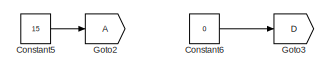
[diagram: root canvas - part 1/4, top center region]
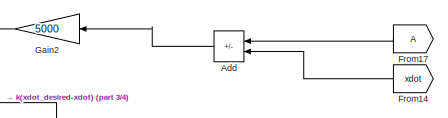
[diagram: root canvas - part 2/4, top center region]
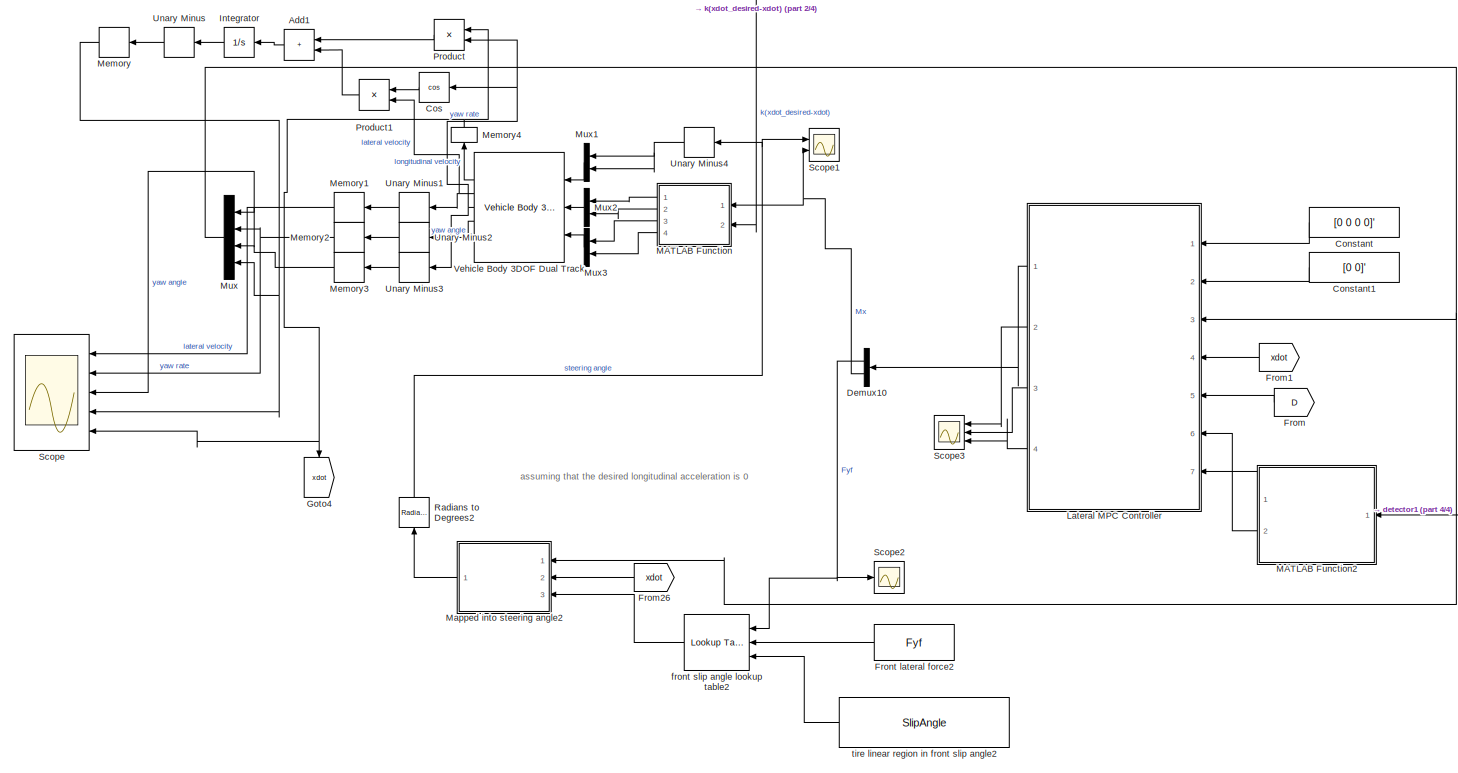
[diagram: root canvas - part 3/4, full width, middle band]
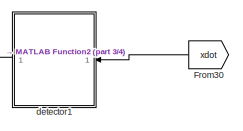
[diagram: root canvas - part 4/4, bottom right region]
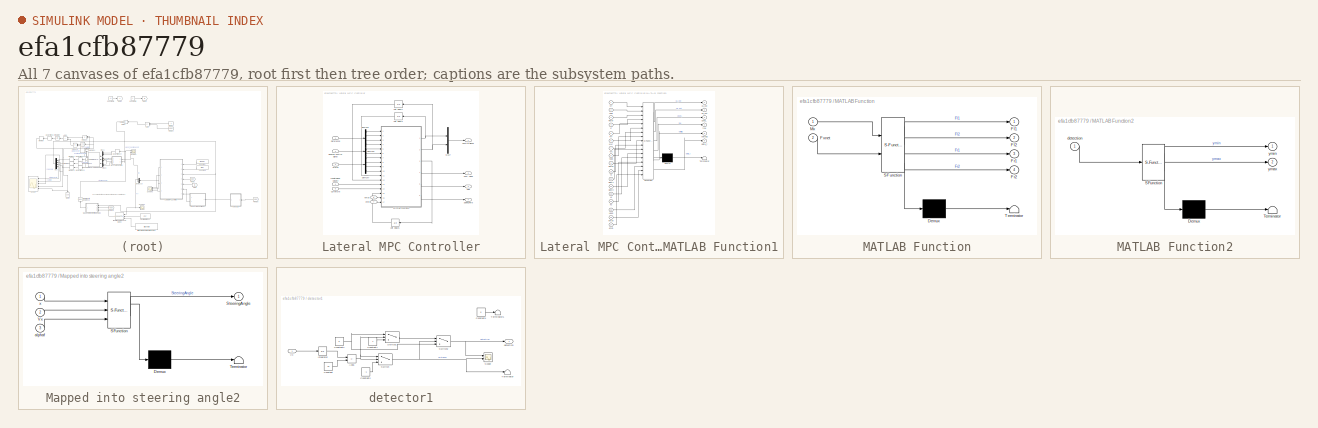
[diagram: thumbnail index - all 7 canvases of the model, root first then tree order]
MODEL slx_efa1cfb87779
KIND model
CONFIG AbsTol = auto
CONFIG EnableMultiTasking = off
CONFIG FixedStep = auto
CONFIG MaxStep = auto
CONFIG MinStep = auto
CONFIG RelTol = 1e-3
CONFIG SampleTimeConstraint = Unconstrained
CONFIG SolverName = VariableStepAuto
CONFIG StartTime = 0.0
CONFIG StopTime = 10.0
BLOCK [Sum] Add
  IconShape = rectangular
  Inputs = +-
  Ports = [2, 1]
BLOCK [Sum] Add1
  IconShape = rectangular
  Ports = [2, 1]
BLOCK [Constant] Constant
  Value = [0 0 0 0]'
BLOCK [Constant] Constant1
  Value = [0 0]'
BLOCK [Constant] Constant5
  Value = 15
BLOCK [Constant] Constant6
  Value = 0
BLOCK [Trigonometry] Cos
  Operator = cos
  Ports = [1, 1]
BLOCK [Demux] Demux10
  Outputs = 2
  Ports = [1, 2]
BLOCK [From] From
  GotoTag = D
BLOCK [From] From1
  GotoTag = xdot
BLOCK [From] From14
  GotoTag = xdot
BLOCK [From] From17
BLOCK [From] From26
  GotoTag = xdot
BLOCK [From] From30
  GotoTag = xdot
BLOCK [Constant] Front lateral force2
  Value = Fyf
BLOCK [Gain] Gain2
  Gain = 5000
BLOCK [Goto] Goto2
BLOCK [Goto] Goto3
  GotoTag = D
BLOCK [Goto] Goto4
  GotoTag = xdot
  NameLocation = left
BLOCK [Integrator] Integrator
  Ports = [1, 1]
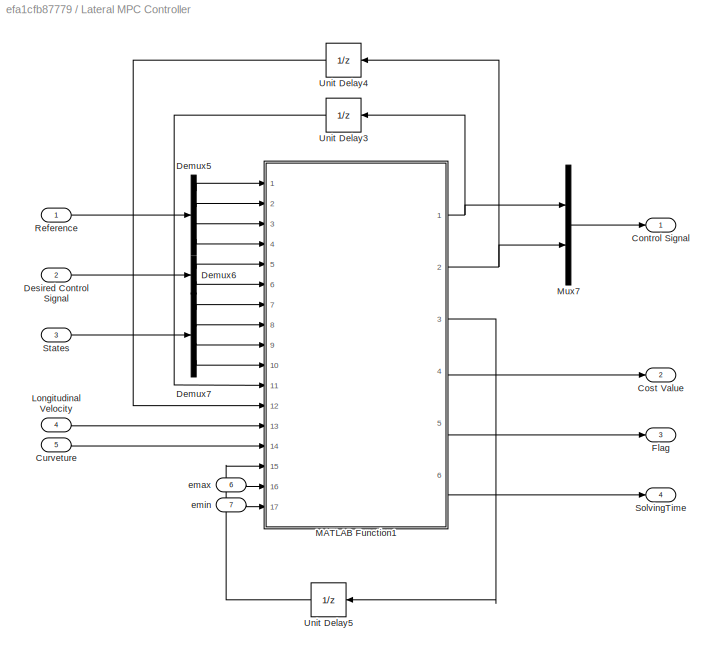
BLOCK [SubSystem] Lateral MPC Controller
  Ports = [7, 4]
  RequestExecContextInheritance = off
BLOCK [Outport] Lateral MPC Controller/Control Signal
BLOCK [Outport] Lateral MPC Controller/Cost Value
  Port = 2
BLOCK [Inport] Lateral MPC Controller/Curveture
  Port = 5
BLOCK [Demux] Lateral MPC Controller/Demux5
  Ports = [1, 4]
BLOCK [Demux] Lateral MPC Controller/Demux6
  Outputs = 2
  Ports = [1, 2]
BLOCK [Demux] Lateral MPC Controller/Demux7
  Ports = [1, 4]
BLOCK [Inport] Lateral MPC Controller/Desired Control Signal
  Port = 2
BLOCK [Outport] Lateral MPC Controller/Flag
  Port = 3
BLOCK [Inport] Lateral MPC Controller/Longitudinal Velocity
  Port = 4
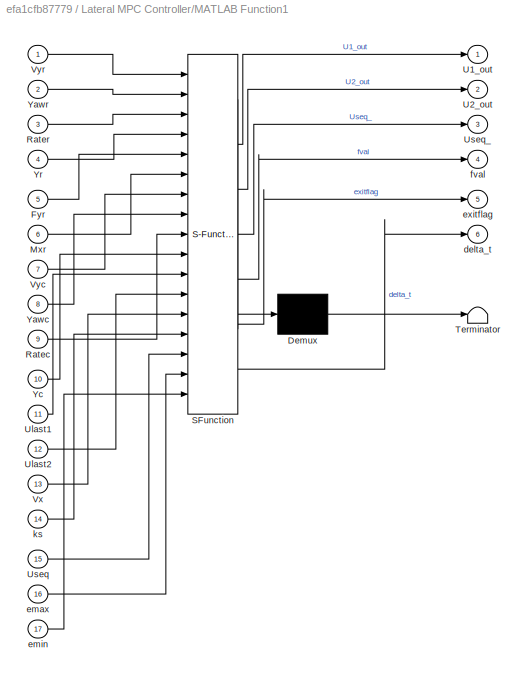
BLOCK [SubSystem] Lateral MPC Controller/MATLAB Function1
  ErrorFcn = Stateflow.Translate.translate
  PermitHierarchicalResolution = ExplicitOnly
  Ports = [17, 6]
  RequestExecContextInheritance = off
  SFBlockType = MATLAB Function
  TreatAsAtomicUnit = on
BLOCK [Demux] Lateral MPC Controller/MATLAB Function1/ Demux 
  Outputs = 1
  Ports = [1, 1]
BLOCK [S-Function] Lateral MPC Controller/MATLAB Function1/ SFunction 
  EnableBusSupport = on
  FunctionName = sf_sfun
  PortCounts = [17 7]
  Ports = [17, 7]
  SFcnIsStateOwnerBlock = off
  SFunctionDeploymentMode = off
  Tag = Stateflow S-Function 4
BLOCK [Terminator] Lateral MPC Controller/MATLAB Function1/ Terminator 
BLOCK [Inport] Lateral MPC Controller/MATLAB Function1/Fyr
  Port = 5
BLOCK [Inport] Lateral MPC Controller/MATLAB Function1/Mxr
  Port = 6
BLOCK [Inport] Lateral MPC Controller/MATLAB Function1/Ratec
  Port = 9
BLOCK [Inport] Lateral MPC Controller/MATLAB Function1/Rater
  Port = 3
BLOCK [Outport] Lateral MPC Controller/MATLAB Function1/U1_out
BLOCK [Outport] Lateral MPC Controller/MATLAB Function1/U2_out
  Port = 2
BLOCK [Inport] Lateral MPC Controller/MATLAB Function1/Ulast1
  Port = 11
BLOCK [Inport] Lateral MPC Controller/MATLAB Function1/Ulast2
  Port = 12
BLOCK [Inport] Lateral MPC Controller/MATLAB Function1/Useq
  Port = 15
BLOCK [Outport] Lateral MPC Controller/MATLAB Function1/Useq_
  Port = 3
BLOCK [Inport] Lateral MPC Controller/MATLAB Function1/Vx
  Port = 13
BLOCK [Inport] Lateral MPC Controller/MATLAB Function1/Vyc
  Port = 7
BLOCK [Inport] Lateral MPC Controller/MATLAB Function1/Vyr
BLOCK [Inport] Lateral MPC Controller/MATLAB Function1/Yawc
  Port = 8
BLOCK [Inport] Lateral MPC Controller/MATLAB Function1/Yawr
  Port = 2
BLOCK [Inport] Lateral MPC Controller/MATLAB Function1/Yc
  Port = 10
BLOCK [Inport] Lateral MPC Controller/MATLAB Function1/Yr
  Port = 4
BLOCK [Outport] Lateral MPC Controller/MATLAB Function1/delta_t
  Port = 6
BLOCK [Inport] Lateral MPC Controller/MATLAB Function1/emax
  Port = 16
BLOCK [Inport] Lateral MPC Controller/MATLAB Function1/emin
  Port = 17
BLOCK [Outport] Lateral MPC Controller/MATLAB Function1/exitflag
  Port = 5
BLOCK [Outport] Lateral MPC Controller/MATLAB Function1/fval
  Port = 4
BLOCK [Inport] Lateral MPC Controller/MATLAB Function1/ks
  Port = 14
BLOCK [Mux] Lateral MPC Controller/Mux7
  DisplayOption = bar
  Inputs = 2
  Ports = [2, 1]
BLOCK [Inport] Lateral MPC Controller/Reference
BLOCK [Outport] Lateral MPC Controller/SolvingTime
  Port = 4
BLOCK [Inport] Lateral MPC Controller/States
  Port = 3
BLOCK [UnitDelay] Lateral MPC Controller/Unit Delay3
  HasFrameUpgradeWarning = on
  SampleTime = -1
BLOCK [UnitDelay] Lateral MPC Controller/Unit Delay4
  HasFrameUpgradeWarning = on
  SampleTime = -1
BLOCK [UnitDelay] Lateral MPC Controller/Unit Delay5
  HasFrameUpgradeWarning = on
  InitialCondition = zeros(31,2)
  SampleTime = -1
BLOCK [Inport] Lateral MPC Controller/emax
  Port = 6
BLOCK [Inport] Lateral MPC Controller/emin
  Port = 7
BLOCK [SubSystem] MATLAB Function
  ErrorFcn = Stateflow.Translate.translate
  PermitHierarchicalResolution = ExplicitOnly
  Ports = [2, 4]
  RequestExecContextInheritance = off
  SFBlockType = MATLAB Function
  TreatAsAtomicUnit = on
BLOCK [Demux] MATLAB Function/ Demux 
  Outputs = 1
  Ports = [1, 1]
BLOCK [S-Function] MATLAB Function/ SFunction 
  EnableBusSupport = on
  FunctionName = sf_sfun
  PortCounts = [2 5]
  Ports = [2, 5]
  SFcnIsStateOwnerBlock = off
  SFunctionDeploymentMode = off
  Tag = Stateflow S-Function 16
BLOCK [Terminator] MATLAB Function/ Terminator 
BLOCK [Outport] MATLAB Function/Fl1
BLOCK [Outport] MATLAB Function/Fl2
  Port = 2
BLOCK [Outport] MATLAB Function/Fr1
  Port = 3
BLOCK [Outport] MATLAB Function/Fr2
  Port = 4
BLOCK [Inport] MATLAB Function/Fxnet
  Port = 2
BLOCK [Inport] MATLAB Function/Mx
BLOCK [SubSystem] MATLAB Function2
  ErrorFcn = Stateflow.Translate.translate
  PermitHierarchicalResolution = ExplicitOnly
  Ports = [1, 2]
  RequestExecContextInheritance = off
  SFBlockType = MATLAB Function
  TreatAsAtomicUnit = on
BLOCK [Demux] MATLAB Function2/ Demux 
  Outputs = 1
  Ports = [1, 1]
BLOCK [S-Function] MATLAB Function2/ SFunction 
  EnableBusSupport = on
  FunctionName = sf_sfun
  PortCounts = [1 3]
  Ports = [1, 3]
  SFcnIsStateOwnerBlock = off
  SFunctionDeploymentMode = off
  Tag = Stateflow S-Function 2
BLOCK [Terminator] MATLAB Function2/ Terminator 
BLOCK [Inport] MATLAB Function2/detection
BLOCK [Outport] MATLAB Function2/ymax
  Port = 2
BLOCK [Outport] MATLAB Function2/ymin
BLOCK [SubSystem] Mapped into steering angle2
  ErrorFcn = Stateflow.Translate.translate
  PermitHierarchicalResolution = ExplicitOnly
  Ports = [3, 1]
  RequestExecContextInheritance = off
  SFBlockType = MATLAB Function
  TreatAsAtomicUnit = on
BLOCK [Demux] Mapped into steering angle2/ Demux 
  Outputs = 1
  Ports = [1, 1]
BLOCK [S-Function] Mapped into steering angle2/ SFunction 
  EnableBusSupport = on
  FunctionName = sf_sfun
  PortCounts = [3 2]
  Ports = [3, 2]
  SFcnIsStateOwnerBlock = off
  SFunctionDeploymentMode = off
  Tag = Stateflow S-Function 13
BLOCK [Terminator] Mapped into steering angle2/ Terminator 
BLOCK [Outport] Mapped into steering angle2/SteeringAngle
BLOCK [Inport] Mapped into steering angle2/Vx
  Port = 2
BLOCK [Inport] Mapped into steering angle2/alphaf
  Port = 3
BLOCK [Inport] Mapped into steering angle2/x
BLOCK [Memory] Memory
BLOCK [Memory] Memory1
BLOCK [Memory] Memory2
BLOCK [Memory] Memory3
BLOCK [Memory] Memory4
  InitialCondition = 15
  NameLocation = right
BLOCK [Mux] Mux
  DisplayOption = bar
  Ports = [4, 1]
BLOCK [Mux] Mux1
  DisplayOption = bar
  Inputs = 2
  Ports = [2, 1]
BLOCK [Mux] Mux2
  DisplayOption = bar
  Inputs = 2
  Ports = [2, 1]
BLOCK [Mux] Mux3
  DisplayOption = bar
  Inputs = 2
  Ports = [2, 1]
BLOCK [Product] Product
  Ports = [2, 1]
BLOCK [Product] Product1
  Ports = [2, 1]
BLOCK [Reference] Radians to Degrees2  REF=simulink_extras/Transformations/Radians
to Degrees
  NameLocation = left
  Ports = [1, 1]
  SourceBlock = simulink_extras/Transformations/Radians\nto Degrees
  SourceProductBaseCode = SL
  SourceType = RadiansToDegrees
BLOCK [Scope] Scope
  Floating = off
  NumInputPorts = 5
  Ports = [5]
  ScopeSpecificationString = Simulink.scopes.TimeScopeBlockCfg('CurrentConfiguration', extmgr.ConfigurationSet(extmgr.Configuration('Core','General UI',true),extmgr.Configuration('Core','Source UI',true),extmgr.Configuration('Sources','WiredSimulink',true,'DataLoggingVariableName','ScopeData1'),extmgr.Configuration('Visuals','Time Domain',true,'SerializedDisplays',{struct('MinYLimReal','-3441.22572','MaxYLimReal','679.57122',...<+4828ch>
BLOCK [Scope] Scope1
  Floating = off
  NumInputPorts = 2
  Ports = [2]
  ScopeSpecificationString = Simulink.scopes.TimeScopeBlockCfg('CurrentConfiguration', extmgr.ConfigurationSet(extmgr.Configuration('Core','General UI',true),extmgr.Configuration('Core','Source UI',true),extmgr.Configuration('Sources','WiredSimulink',true,'DataLoggingVariableName','ScopeData2'),extmgr.Configuration('Visuals','Time Domain',true,'SerializedDisplays',{struct('MinYLimReal','-9.78875','MaxYLimReal','9.28435','YLab...<+2051ch>
BLOCK [Scope] Scope2
  Floating = off
  NumInputPorts = 1
  Ports = [1]
  ScopeSpecificationString = Simulink.scopes.TimeScopeBlockCfg('CurrentConfiguration', extmgr.ConfigurationSet(extmgr.Configuration('Core','General UI',true),extmgr.Configuration('Core','Source UI',true),extmgr.Configuration('Sources','WiredSimulink',true,'DataLoggingVariableName','ScopeData3'),extmgr.Configuration('Visuals','Time Domain',true,'SerializedDisplays',{struct('MinYLimReal','-11062.39515','MaxYLimReal','12073.7571...<+1425ch>
BLOCK [Scope] Scope3
  Floating = off
  NumInputPorts = 3
  Ports = [3]
  ScopeSpecificationString = Simulink.scopes.TimeScopeBlockCfg('CurrentConfiguration', extmgr.ConfigurationSet(extmgr.Configuration('Core','General UI',true),extmgr.Configuration('Core','Source UI',true),extmgr.Configuration('Sources','WiredSimulink',true,'DataLoggingVariableName','ScopeData4'),extmgr.Configuration('Visuals','Time Domain',true),extmgr.Configuration('Tools','Plot Navigation',true),extmgr.Configuration('Tools',...<+40ch>
BLOCK [UnaryMinus] Unary Minus
BLOCK [UnaryMinus] Unary Minus1
BLOCK [UnaryMinus] Unary Minus2
BLOCK [UnaryMinus] Unary Minus3
BLOCK [UnaryMinus] Unary Minus4
BLOCK [Reference] Vehicle Body 3DOF Dual Track  REF=autolibshared/Vehicle Body 3DOF Single Track
  Ports = [3, 7]
  SourceBlock = autolibshared/Vehicle Body 3DOF Single Track
  SourceProductBaseCode = PW,DR,MT,UV,VE
  SourceType = Vehicle Body 3DOF Lateral
BLOCK [SubSystem] detector1
  Ports = [1, 1]
  RequestExecContextInheritance = off
BLOCK [Sum] detector1/Add1
  IconShape = rectangular
  Inputs = -+
  Ports = [2, 1]
BLOCK [Constant] detector1/Constant
  Value = 75
BLOCK [Constant] detector1/Constant1
  Value = 0
BLOCK [Constant] detector1/Constant2
  Value = -1
BLOCK [Constant] detector1/Constant4
  Value = 0
BLOCK [Constant] detector1/Constant7
BLOCK [Integrator] detector1/Integrator
  Ports = [1, 1]
BLOCK [Scope] detector1/Scope
  Floating = off
  NumInputPorts = 2
  Ports = [2]
  ScopeSpecificationString = Simulink.scopes.TimeScopeBlockCfg('CurrentConfiguration', extmgr.ConfigurationSet(extmgr.Configuration('Core','General UI',true),extmgr.Configuration('Core','Source UI',true),extmgr.Configuration('Sources','WiredSimulink',true),extmgr.Configuration('Visuals','Time Domain',true,'SerializedDisplays',{struct('MinYLimReal','-0.125','MaxYLimReal','1.125','YLabelReal','','MinYLimMag','0.00000','MaxYLimM...<+1985ch>
BLOCK [Switch] detector1/Switch
  Criteria = u2 > Threshold
  InputSameDT = off
  SaturateOnIntegerOverflow = off
BLOCK [Switch] detector1/Switch1
  Criteria = u2 > Threshold
  InputSameDT = off
  SaturateOnIntegerOverflow = off
  Threshold = 50
BLOCK [Switch] detector1/Switch2
  Criteria = u2 > Threshold
  InputSameDT = off
  SaturateOnIntegerOverflow = off
BLOCK [Terminator] detector1/Terminator
BLOCK [Terminator] detector1/Terminator1
BLOCK [Inport] detector1/Vx
BLOCK [Outport] detector1/detection
BLOCK [Reference] front slip angle lookup table2  REF=simulink/Lookup
Tables/Lookup
Table
Dynamic
  Ports = [3, 1]
  SourceBlock = simulink/Lookup\nTables/Lookup\nTable\nDynamic
  SourceProductBaseCode = SL
  SourceType = Lookup Table Dynamic
BLOCK [Constant] tire linear region in front slip angle2
  Value = SlipAngle
ANNOTATION (root): assuming that the desired longitudinal acceleration is 0
LINE Add1:1 -> Integrator:1
LINE Add:1 -> Gain2:1
LINE Constant1:1 -> Lateral MPC Controller:2
LINE Constant5:1 -> Goto2:1
LINE Constant6:1 -> Goto3:1
LINE Constant:1 -> Lateral MPC Controller:1
LINE Cos:1 -> Product1:1
NET Demux10:1 -> Scope2:1, front slip angle lookup table2:1
NET Demux10:2 -> MATLAB Function:1, Scope1:2
LINE From14:1 -> Add:2
LINE From17:1 -> Add:1
LINE From1:1 -> Lateral MPC Controller:4
LINE From26:1 -> Mapped into steering angle2:2
LINE From30:1 -> detector1:1
LINE From:1 -> Lateral MPC Controller:5
LINE Front lateral force2:1 -> front slip angle lookup table2:2
LINE Gain2:1 -> MATLAB Function:2
LINE Integrator:1 -> Unary Minus:1
LINE Lateral MPC Controller/Curveture:1 -> Lateral MPC Controller/MATLAB Function1:14
LINE Lateral MPC Controller/Demux5:1 -> Lateral MPC Controller/MATLAB Function1:1
LINE Lateral MPC Controller/Demux5:2 -> Lateral MPC Controller/MATLAB Function1:2
LINE Lateral MPC Controller/Demux5:3 -> Lateral MPC Controller/MATLAB Function1:3
LINE Lateral MPC Controller/Demux5:4 -> Lateral MPC Controller/MATLAB Function1:4
LINE Lateral MPC Controller/Demux6:1 -> Lateral MPC Controller/MATLAB Function1:5
LINE Lateral MPC Controller/Demux6:2 -> Lateral MPC Controller/MATLAB Function1:6
LINE Lateral MPC Controller/Demux7:1 -> Lateral MPC Controller/MATLAB Function1:7
LINE Lateral MPC Controller/Demux7:2 -> Lateral MPC Controller/MATLAB Function1:8
LINE Lateral MPC Controller/Demux7:3 -> Lateral MPC Controller/MATLAB Function1:9
LINE Lateral MPC Controller/Demux7:4 -> Lateral MPC Controller/MATLAB Function1:10
LINE Lateral MPC Controller/Desired Control Signal:1 -> Lateral MPC Controller/Demux6:1
LINE Lateral MPC Controller/Longitudinal Velocity:1 -> Lateral MPC Controller/MATLAB Function1:13
NET Lateral MPC Controller/MATLAB Function1:1 -> Lateral MPC Controller/Mux7:1, Lateral MPC Controller/Unit Delay3:1
NET Lateral MPC Controller/MATLAB Function1:2 -> Lateral MPC Controller/Mux7:2, Lateral MPC Controller/Unit Delay4:1
LINE Lateral MPC Controller/MATLAB Function1:3 -> Lateral MPC Controller/Unit Delay5:1
LINE Lateral MPC Controller/MATLAB Function1:4 -> Lateral MPC Controller/Cost Value:1
LINE Lateral MPC Controller/MATLAB Function1:5 -> Lateral MPC Controller/Flag:1
LINE Lateral MPC Controller/MATLAB Function1:6 -> Lateral MPC Controller/SolvingTime:1
LINE Lateral MPC Controller/Mux7:1 -> Lateral MPC Controller/Control Signal:1
LINE Lateral MPC Controller/Reference:1 -> Lateral MPC Controller/Demux5:1
LINE Lateral MPC Controller/States:1 -> Lateral MPC Controller/Demux7:1
LINE Lateral MPC Controller/Unit Delay3:1 -> Lateral MPC Controller/MATLAB Function1:11
LINE Lateral MPC Controller/Unit Delay4:1 -> Lateral MPC Controller/MATLAB Function1:12
LINE Lateral MPC Controller/Unit Delay5:1 -> Lateral MPC Controller/MATLAB Function1:15
LINE Lateral MPC Controller/emax:1 -> Lateral MPC Controller/MATLAB Function1:16
LINE Lateral MPC Controller/emin:1 -> Lateral MPC Controller/MATLAB Function1:17
LINE Lateral MPC Controller:1 -> Demux10:1
LINE Lateral MPC Controller:2 -> Scope3:1
LINE Lateral MPC Controller:3 -> Scope3:2
LINE Lateral MPC Controller:4 -> Scope3:3
LINE MATLAB Function2:1 -> Lateral MPC Controller:7
LINE MATLAB Function2:2 -> Lateral MPC Controller:6
LINE MATLAB Function:1 -> Mux2:1
LINE MATLAB Function:2 -> Mux2:2
LINE MATLAB Function:3 -> Mux3:1
LINE MATLAB Function:4 -> Mux3:2
LINE Mapped into steering angle2:1 -> Radians to Degrees2:1
NET Memory1:1 -> Mux:1, Scope:1
NET Memory2:1 -> Mux:2, Scope:2
NET Memory3:1 -> Mux:3, Scope:3
NET Memory4:1 -> Goto4:1, Product:1, Scope:5
NET Memory:1 -> Mux:4, Scope:4
LINE Mux1:1 -> Vehicle Body 3DOF Dual Track:1
LINE Mux2:1 -> Vehicle Body 3DOF Dual Track:2
LINE Mux3:1 -> Vehicle Body 3DOF Dual Track:3
NET Mux:1 -> Lateral MPC Controller:3, Mapped into steering angle2:1
LINE Product1:1 -> Add1:2
LINE Product:1 -> Add1:1
NET Radians to Degrees2:1 -> Scope1:1, Unary Minus4:1
LINE Unary Minus1:1 -> Memory1:1
LINE Unary Minus2:1 -> Memory2:1
LINE Unary Minus3:1 -> Memory3:1
NET Unary Minus4:1 -> Mux1:1, Mux1:2
LINE Unary Minus:1 -> Memory:1
LINE Vehicle Body 3DOF Dual Track:2 -> Memory4:1
NET Vehicle Body 3DOF Dual Track:3 -> Product1:2, Unary Minus1:1
NET Vehicle Body 3DOF Dual Track:4 -> Cos:1, Product:2, Unary Minus3:1
LINE Vehicle Body 3DOF Dual Track:5 -> Unary Minus2:1
NET detector1/Add1:1 -> detector1/Switch1:2, detector1/Switch:1, detector1/Switch:2
LINE detector1/Constant1:1 -> detector1/Terminator1:1
LINE detector1/Constant2:1 -> detector1/Switch:3
NET detector1/Constant4:1 -> detector1/Switch1:1, detector1/Switch2:3
LINE detector1/Constant7:1 -> detector1/Switch1:3
LINE detector1/Constant:1 -> detector1/Add1:2
LINE detector1/Integrator:1 -> detector1/Add1:1
LINE detector1/Switch1:1 -> detector1/Switch2:1
NET detector1/Switch2:1 -> detector1/Scope:1, detector1/detection:1
NET detector1/Switch:1 -> detector1/Scope:2, detector1/Switch2:2, detector1/Terminator:1
LINE detector1/Vx:1 -> detector1/Integrator:1
LINE detector1:1 -> MATLAB Function2:1
LINE front slip angle lookup table2:1 -> Mapped into steering angle2:3
LINE tire linear region in front slip angle2:1 -> front slip angle lookup table2:3
note: NET lines group one-source signal fan-out (src -> all destinations, sorted); 1:1 wires keep LINE
CHART MATLAB Function2 states=1 transitions=1
  STATE_LABEL 'eML_blk_kernel()'
  STATE_LABEL 'SCRIPT:\nfunction [ymin,ymax] = fcn(detection)\n\n% miu = 0.7; %frction cooeficient 0.7 for dry road and 0.4 for wet\n% g = 9.81; % gravity\n% m = 2272;   %mass\n% lf = 1.11;  % distance from front axle to the mass center\n% lr = 1.67;  % distance from rear axle to the mass center\n% C_a = 1.822e5; % rear cornering stifness\n% \n% Fz = m*g*lf/(lf+lr)/2; % the load that beared by the rear tire\n% \n% rmax = g*...<+314ch>'
CHART Lateral MPC Controller/MATLAB Function1 states=1 transitions=1
  STATE_LABEL 'eML_blk_kernel()'
  STATE_LABEL "SCRIPT:\nfunction [U1_out,U2_out,Useq_,fval,exitflag,delta_t] = fcn(Vyr,Yawr,Rater,Yr, Fyr,Mxr,Vyc,Yawc,Ratec,Yc,Ulast1,Ulast2,Vx,ks,Useq,emax,emin)\n%Vyr lateral velocity, Yawr yaw angle, Rater yaw rate, Yr lateral position\n%Fyr lateral force in front tyre,Mxr moment generated by longitudinal force\n%'r'means reference ||  'c'means current\n    lr=1.67;\n    threshold=0.213;\n    miu=0.7;\n    rmax=9.81...<+3608ch>"
CHART Mapped into steering angle2 states=1 transitions=1
  STATE_LABEL 'eML_blk_kernel()'
  STATE_LABEL 'SCRIPT:\nfunction SteeringAngle = fcn(x,Vx, alphaf)\n\nlf = 1.11;  % distance from front axle to the mass center\n\nVy = x(1); %lateral velocity\nr = x(2);  %yaw rate\nSteeringAngle = Vy/Vx+lf*r/Vx-alphaf;\n\n'
CHART MATLAB Function states=1 transitions=1
  STATE_LABEL 'eML_blk_kernel()'
  STATE_LABEL 'SCRIPT:\nfunction [Fl1,Fl2,Fr1,Fr2] = fcn(Mx,Fxnet)\n\nw = 1.875; % the width of the car\n\nFwf = zeros(2,1);\nFwr = zeros(2,1);\n\nif Mx > 0\n    Fwf(1) = Fxnet/2-Mx/w;\n    Fwf(2) = Fxnet/2;\n    Fwr(1) = -Mx/w;\n    Fwr(2) = 0;\nelseif Mx < 0\n    Fwf(1) = Fxnet/2;\n    Fwf(2) = Fxnet/2+Mx/w;\n    Fwr(1) = 0;\n    Fwr(2) = Mx/w;\nelse\n    Fwf(1) = Fxnet/2+0;\n    Fwf(2) = Fxnet/2+0;\n    Fwr(1) = 0;\n    Fwr(2) = 0...<+62ch>'
CHART  states=0 transitions=0
CHART  states=0 transitions=0
CHART  states=0 transitions=0
CHART  states=0 transitions=0
